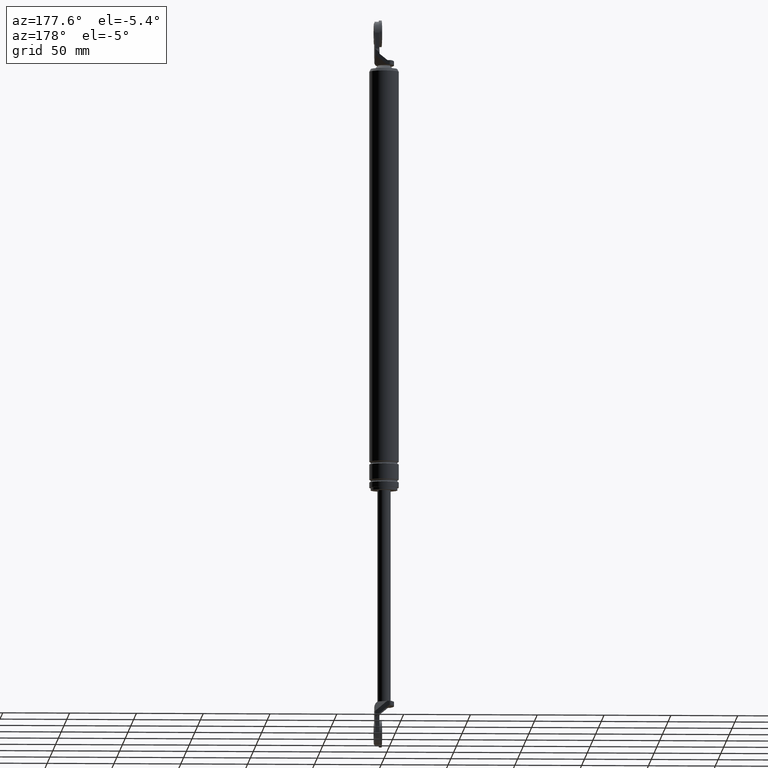
[diagram: clean part render]
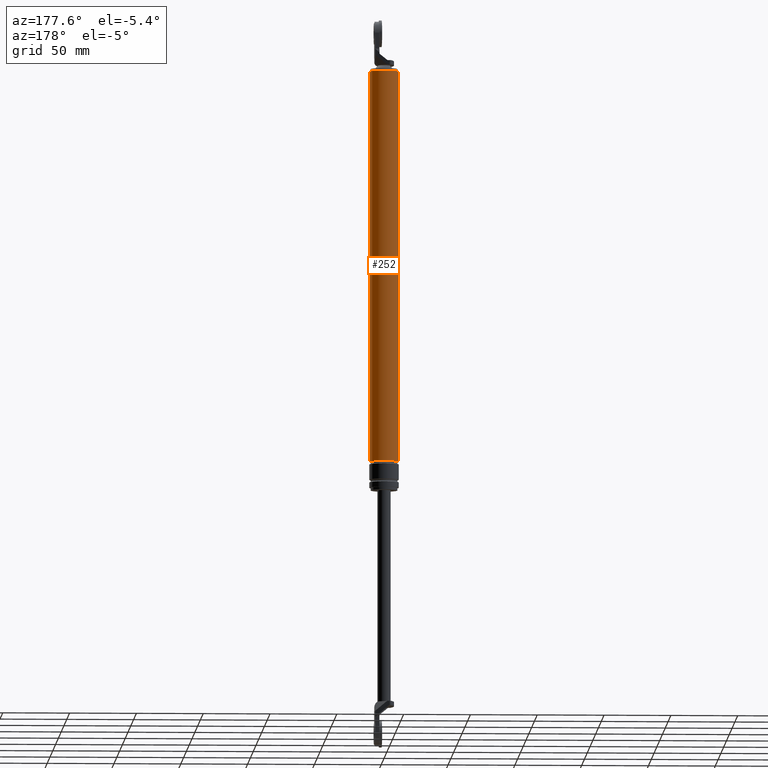
[diagram: same view with one face highlighted and labeled with its STEP entity id]
A machine part, auxiliary view. The second image highlights one B-rep face of the part: STEP entity #252.
In plain terms, the highlighted cylindrical surface (edge-blend (fillet) strip) has radius 11 mm, axis along (0, 0, 1).
Its self-contained STEP definition (entity closure, byte-faithful):
#252=ADVANCED_FACE('',(#773),#772,.T.);
#772=CYLINDRICAL_SURFACE('',#1467,1.10000000000E+001);
#773=FACE_OUTER_BOUND('',#1468,.T.);
#1464=CARTESIAN_POINT('',(0.00000000000E+000,0.00000000000E+000,5.00000000000E+001));
#1465=DIRECTION('',(-0.00000000000E+000,-0.00000000000E+000,1.00000000000E+000));
#1466=DIRECTION('',(1.00000000000E+000,0.00000000000E+000,0.00000000000E+000));
#1467=AXIS2_PLACEMENT_3D('',#1464,#1465,#1466);
#1468=EDGE_LOOP('',(#1900,#1901,#1902,#1903));
#1900=ORIENTED_EDGE('',*,*,#2176,.T.);
#1901=ORIENTED_EDGE('',*,*,#2177,.F.);
#1902=ORIENTED_EDGE('',*,*,#2170,.F.);
#1903=ORIENTED_EDGE('',*,*,#2178,.T.);
#2170=EDGE_CURVE('',#2986,#2987,#2988,.T.);
#2176=EDGE_CURVE('',#3024,#3025,#3026,.T.);
#2177=EDGE_CURVE('',#2987,#3025,#3032,.T.);
#2178=EDGE_CURVE('',#2986,#3024,#3038,.T.);
#2986=VERTEX_POINT('',#3977);
#2987=VERTEX_POINT('',#3978);
#2988=CIRCLE('',#3982,1.10000000000E+001);
#3024=VERTEX_POINT('',#4001);
#3025=VERTEX_POINT('',#4002);
#3026=CIRCLE('',#4006,1.10000000000E+001);
#3032=(BOUNDED_CURVE() B_SPLINE_CURVE(1,(#4007,#4008),.UNSPECIFIED.,.F.,.F.) B_SPLINE_CURVE_WITH_KNOTS((2,2),(3.19488818761E-002,9.68051118208E-001),.UNSPECIFIED.) CURVE() GEOMETRIC_REPRESENTATION_ITEM() RATIONAL_B_SPLINE_CURVE((1.00000000000E+000,1.00000000000E+000)) REPRESENTATION_ITEM('') );
#3038=(BOUNDED_CURVE() B_SPLINE_CURVE(1,(#4009,#4010),.UNSPECIFIED.,.F.,.F.) B_SPLINE_CURVE_WITH_KNOTS((2,2),(3.19488817891E-002,9.68051118211E-001),.UNSPECIFIED.) CURVE() GEOMETRIC_REPRESENTATION_ITEM() RATIONAL_B_SPLINE_CURVE((7.50000000000E-001,7.50000000000E-001)) REPRESENTATION_ITEM('') );
#3977=CARTESIAN_POINT('',(-1.10000000000E+001,0.00000000000E+000,7.15000000000E+001));
#3978=CARTESIAN_POINT('',(1.10000000000E+001,5.92118946467E-016,7.15000000000E+001));
#3979=CARTESIAN_POINT('',(0.00000000000E+000,0.00000000000E+000,7.15000000000E+001));
#3980=DIRECTION('',(-0.00000000000E+000,0.00000000000E+000,-1.00000000000E+000));
#3981=DIRECTION('',(-1.00000000000E+000,-1.22460635382E-016,0.00000000000E+000));
#3982=AXIS2_PLACEMENT_3D('',#3979,#3980,#3981);
#4001=CARTESIAN_POINT('',(-1.10000000000E+001,0.00000000000E+000,3.64500000000E+002));
#4002=CARTESIAN_POINT('',(1.10000000000E+001,5.92118946467E-016,3.64500000000E+002));
#4003=CARTESIAN_POINT('',(0.00000000000E+000,0.00000000000E+000,3.64500000000E+002));
#4004=DIRECTION('',(-0.00000000000E+000,0.00000000000E+000,-1.00000000000E+000));
#4005=DIRECTION('',(-1.00000000000E+000,-1.22460635382E-016,0.00000000000E+000));
#4006=AXIS2_PLACEMENT_3D('',#4003,#4004,#4005);
#4007=CARTESIAN_POINT('',(1.10000000000E+001,0.00000000000E+000,7.15000000272E+001));
#4008=CARTESIAN_POINT('',(1.10000000000E+001,0.00000000000E+000,3.64499999999E+002));
#4009=CARTESIAN_POINT('',(-1.10000000000E+001,0.00000000000E+000,7.15000000000E+001));
#4010=CARTESIAN_POINT('',(-1.10000000000E+001,0.00000000000E+000,3.64500000000E+002));